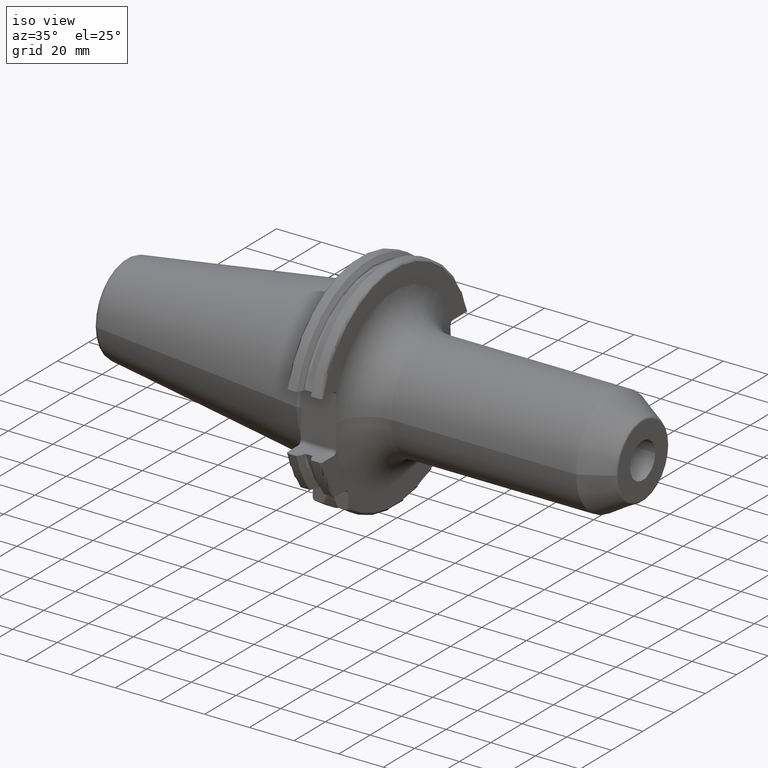
[diagram: clean part render]
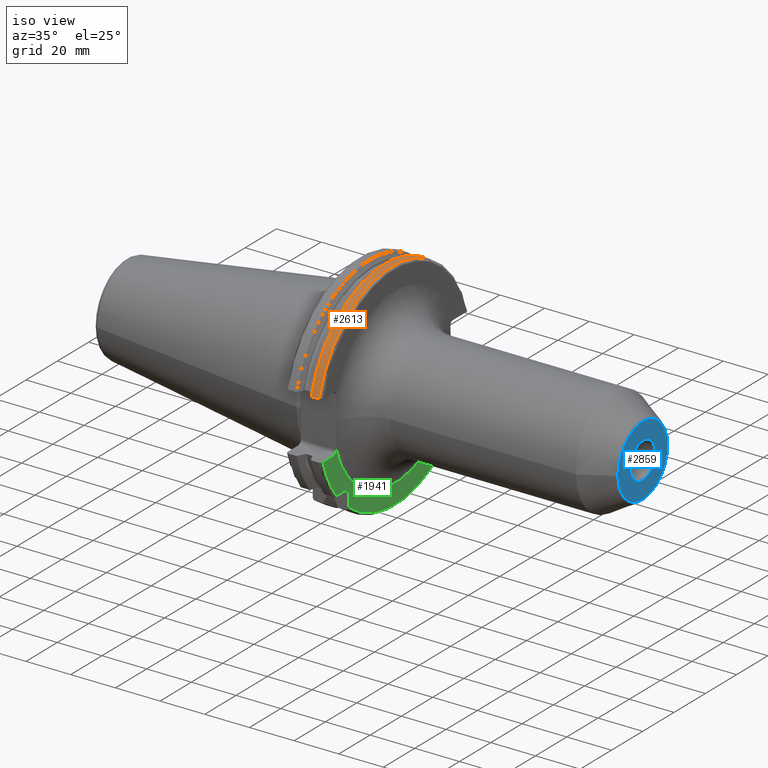
[diagram: same view with three faces highlighted in distinct colors, each labeled with its STEP entity id]
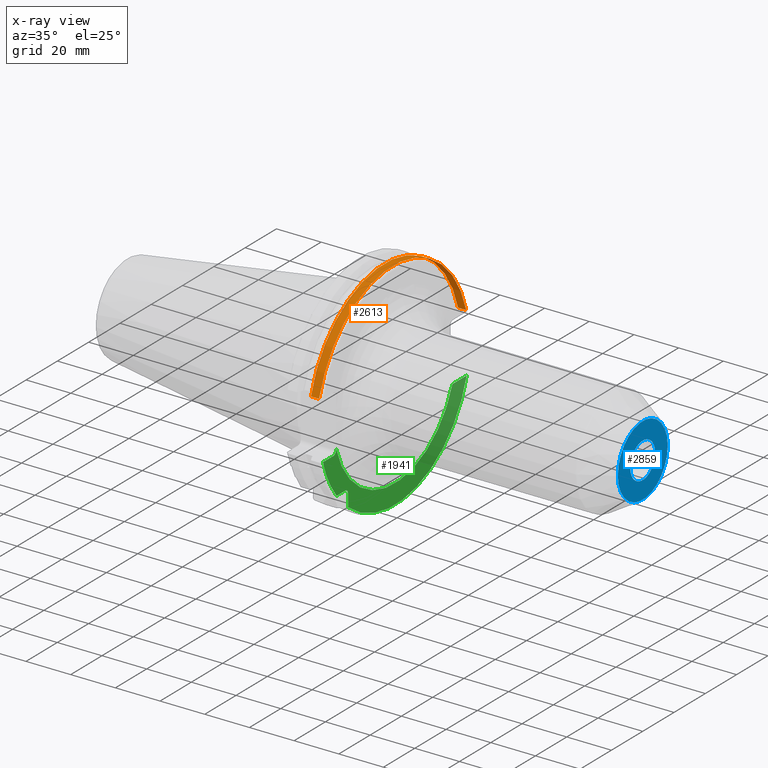
[diagram: x-ray of the same camera — body ghosted, the three highlighted faces saturated]
A machine part, iso view with three faces highlighted in distinct colors.
The next image is the same camera in x-ray (body ghosted, the three faces saturated) — at least one of them is partly hidden behind the body in this view.
Their STEP definitions:

[orange] entity #2613 — the highlighted cylindrical surface (partial cylindrical patch) has radius 48.7375 mm, axis along (1, 0, 0).
#735=CARTESIAN_POINT('',(1.441537838583E1,4.699929686974E1,1.29E1));
#747=CARTESIAN_POINT('',(1.441537838583E1,-4.699929686974E1,1.29E1));
#767=DIRECTION('',(1.E0,0.E0,0.E0));
#768=VECTOR('',#767,3.634621614173E0);
#769=CARTESIAN_POINT('',(1.441537838583E1,4.699929686974E1,1.29E1));
#770=LINE('',#769,#768);
#771=CARTESIAN_POINT('',(1.805E1,0.E0,0.E0));
#772=DIRECTION('',(1.E0,0.E0,0.E0));
#773=DIRECTION('',(0.E0,9.643354064066E-1,2.646832521159E-1));
#774=AXIS2_PLACEMENT_3D('',#771,#772,#773);
#776=DIRECTION('',(1.E0,0.E0,0.E0));
#777=VECTOR('',#776,3.634621614173E0);
#778=CARTESIAN_POINT('',(1.441537838583E1,-4.699929686974E1,1.29E1));
#779=LINE('',#778,#777);
#780=CARTESIAN_POINT('',(1.441537838583E1,0.E0,0.E0));
#781=DIRECTION('',(1.E0,0.E0,0.E0));
#782=DIRECTION('',(0.E0,9.643354064066E-1,2.646832521159E-1));
#783=AXIS2_PLACEMENT_3D('',#780,#781,#782);
#1558=VERTEX_POINT('',#735);
#1559=VERTEX_POINT('',#747);
#1574=CARTESIAN_POINT('',(1.805E1,4.699929686974E1,1.29E1));
#1575=VERTEX_POINT('',#1574);
#1578=CARTESIAN_POINT('',(1.805E1,-4.699929686974E1,1.29E1));
#1579=VERTEX_POINT('',#1578);
#2602=CARTESIAN_POINT('',(-1.076325E2,0.E0,0.E0));
#2603=DIRECTION('',(1.E0,0.E0,0.E0));
#2604=DIRECTION('',(0.E0,-1.E0,0.E0));
#2605=AXIS2_PLACEMENT_3D('',#2602,#2603,#2604);
#2606=CYLINDRICAL_SURFACE('',#2605,4.87375E1);
#2607=ORIENTED_EDGE('',*,*,#2043,.T.);
#2608=ORIENTED_EDGE('',*,*,#2077,.T.);
#2609=ORIENTED_EDGE('',*,*,#2109,.F.);
#2610=ORIENTED_EDGE('',*,*,#2581,.F.);
#2611=EDGE_LOOP('',(#2607,#2608,#2609,#2610));
#2612=FACE_OUTER_BOUND('',#2611,.F.);
#2613=ADVANCED_FACE('',(#2612),#2606,.T.);
#775=CIRCLE('',#774,4.87375E1);
#784=CIRCLE('',#783,4.87375E1);
#2043=EDGE_CURVE('',#1558,#1575,#770,.T.);
#2077=EDGE_CURVE('',#1575,#1579,#775,.T.);
#2109=EDGE_CURVE('',#1559,#1579,#779,.T.);
#2581=EDGE_CURVE('',#1558,#1559,#784,.T.);

[blue] entity #2859 — the highlighted planar face has unit normal (1, 0, 0).
#1130=CARTESIAN_POINT('',(1.3E2,0.E0,0.E0));
#1131=DIRECTION('',(1.E0,0.E0,0.E0));
#1132=DIRECTION('',(0.E0,1.E0,0.E0));
#1133=AXIS2_PLACEMENT_3D('',#1130,#1131,#1132);
#1135=CARTESIAN_POINT('',(1.3E2,0.E0,0.E0));
#1136=DIRECTION('',(1.E0,0.E0,0.E0));
#1137=DIRECTION('',(0.E0,-1.E0,0.E0));
#1138=AXIS2_PLACEMENT_3D('',#1135,#1136,#1137);
#1140=CARTESIAN_POINT('',(1.3E2,0.E0,0.E0));
#1141=DIRECTION('',(-1.E0,0.E0,0.E0));
#1142=DIRECTION('',(0.E0,1.E0,0.E0));
#1143=AXIS2_PLACEMENT_3D('',#1140,#1141,#1142);
#1145=CARTESIAN_POINT('',(1.3E2,0.E0,0.E0));
#1146=DIRECTION('',(-1.E0,0.E0,0.E0));
#1147=DIRECTION('',(0.E0,-1.E0,0.E0));
#1148=AXIS2_PLACEMENT_3D('',#1145,#1146,#1147);
#1663=CARTESIAN_POINT('',(1.3E2,-8.E0,0.E0));
#1664=VERTEX_POINT('',#1663);
#1673=CARTESIAN_POINT('',(1.3E2,8.E0,0.E0));
#1674=VERTEX_POINT('',#1673);
#1699=CARTESIAN_POINT('',(1.3E2,1.591709623135E1,4.271347892428E-14));
#1700=CARTESIAN_POINT('',(1.3E2,-1.591709623135E1,-3.759415033094E-14));
#1701=VERTEX_POINT('',#1699);
#1702=VERTEX_POINT('',#1700);
#2844=CARTESIAN_POINT('',(1.3E2,0.E0,0.E0));
#2845=DIRECTION('',(1.E0,0.E0,0.E0));
#2846=DIRECTION('',(0.E0,-1.E0,0.E0));
#2847=AXIS2_PLACEMENT_3D('',#2844,#2845,#2846);
#2848=PLANE('',#2847);
#2850=ORIENTED_EDGE('',*,*,#2849,.T.);
#2852=ORIENTED_EDGE('',*,*,#2851,.T.);
#2853=EDGE_LOOP('',(#2850,#2852));
#2854=FACE_OUTER_BOUND('',#2853,.F.);
#2855=ORIENTED_EDGE('',*,*,#2828,.T.);
#2856=ORIENTED_EDGE('',*,*,#2807,.T.);
#2857=EDGE_LOOP('',(#2855,#2856));
#2858=FACE_BOUND('',#2857,.F.);
#2859=ADVANCED_FACE('',(#2854,#2858),#2848,.T.);
#1134=CIRCLE('',#1133,8.E0);
#1139=CIRCLE('',#1138,8.E0);
#1144=CIRCLE('',#1143,1.591709623135E1);
#1149=CIRCLE('',#1148,1.591709623135E1);
#2807=EDGE_CURVE('',#1664,#1674,#1139,.T.);
#2828=EDGE_CURVE('',#1674,#1664,#1134,.T.);
#2849=EDGE_CURVE('',#1701,#1702,#1144,.T.);
#2851=EDGE_CURVE('',#1702,#1701,#1149,.T.);

[green] entity #1941 — the highlighted planar face has unit normal (1, 0, 0).
#126=CARTESIAN_POINT('',(1.905E1,3.705E1,-1.115E1));
#127=DIRECTION('',(-1.E0,0.E0,0.E0));
#128=DIRECTION('',(0.E0,0.E0,-1.E0));
#129=AXIS2_PLACEMENT_3D('',#126,#127,#128);
#136=CARTESIAN_POINT('',(1.905E1,0.E0,0.E0));
#137=DIRECTION('',(1.E0,0.E0,0.E0));
#138=DIRECTION('',(0.E0,-9.615379445209E-1,-2.746721340919E-1));
#139=AXIS2_PLACEMENT_3D('',#136,#137,#138);
#141=DIRECTION('',(0.E0,-1.E0,0.E0));
#142=VECTOR('',#141,8.911493733886E0);
#143=CARTESIAN_POINT('',(1.905E1,4.596149373389E1,-1.29E1));
#144=LINE('',#143,#142);
#145=DIRECTION('',(0.E0,0.E0,1.E0));
#146=VECTOR('',#145,5.653810627237E0);
#147=CARTESIAN_POINT('',(1.905E1,-2.985E1,-3.725381062724E1));
#148=LINE('',#147,#146);
#149=DIRECTION('',(0.E0,-1.E0,0.E0));
#150=VECTOR('',#149,5.653810627237E0);
#151=CARTESIAN_POINT('',(1.905E1,-3.16E1,-2.985E1));
#152=LINE('',#151,#150);
#153=DIRECTION('',(0.E0,1.E0,0.E0));
#154=VECTOR('',#153,6.711493733886E0);
#155=CARTESIAN_POINT('',(1.905E1,-4.596149373389E1,-1.29E1));
#156=LINE('',#155,#154);
#157=DIRECTION('',(0.E0,3.453638620250E-5,9.999999994036E-1));
#158=VECTOR('',#157,4.377789808166E-1);
#159=CARTESIAN_POINT('',(1.905E1,-3.75E1,-1.115E1));
#160=LINE('',#159,#158);
#358=CARTESIAN_POINT('',(1.905E1,-3.925E1,-1.115E1));
#359=DIRECTION('',(-1.E0,0.E0,0.E0));
#360=DIRECTION('',(0.E0,1.E0,0.E0));
#361=AXIS2_PLACEMENT_3D('',#358,#359,#360);
#381=CARTESIAN_POINT('',(1.905E1,4.596149373389E1,-1.29E1));
#393=CARTESIAN_POINT('',(1.905E1,0.E0,0.E0));
#394=DIRECTION('',(-1.E0,0.E0,0.E0));
#395=DIRECTION('',(0.E0,9.627964123359E-1,-2.702278083268E-1));
#396=AXIS2_PLACEMENT_3D('',#393,#394,#395);
#398=CARTESIAN_POINT('',(1.905E1,-4.596149373389E1,-1.29E1));
#409=CARTESIAN_POINT('',(1.905E1,0.E0,0.E0));
#410=DIRECTION('',(-1.E0,0.E0,0.E0));
#411=DIRECTION('',(0.E0,-7.803888060170E-1,-6.252945797329E-1));
#412=AXIS2_PLACEMENT_3D('',#409,#410,#411);
#423=CARTESIAN_POINT('',(1.905E1,-3.725381062724E1,-2.985E1));
#486=CARTESIAN_POINT('',(1.905E1,-3.16E1,-3.16E1));
#487=DIRECTION('',(-1.E0,0.E0,0.E0));
#488=DIRECTION('',(0.E0,0.E0,1.E0));
#489=AXIS2_PLACEMENT_3D('',#486,#487,#488);
#1595=VERTEX_POINT('',#381);
#1596=VERTEX_POINT('',#398);
#1615=CARTESIAN_POINT('',(1.905E1,-2.985E1,-3.725381062724E1));
#1616=VERTEX_POINT('',#1615);
#1623=CARTESIAN_POINT('',(1.905E1,-3.75E1,-1.115E1));
#1625=VERTEX_POINT('',#1623);
#1627=CARTESIAN_POINT('',(1.905E1,-3.925E1,-1.29E1));
#1629=VERTEX_POINT('',#1627);
#1643=CARTESIAN_POINT('',(1.905E1,3.705E1,-1.29E1));
#1645=VERTEX_POINT('',#1643);
#1651=CARTESIAN_POINT('',(1.905E1,-3.16E1,-2.985E1));
#1652=CARTESIAN_POINT('',(1.905E1,-2.985E1,-3.16E1));
#1653=VERTEX_POINT('',#1651);
#1654=VERTEX_POINT('',#1652);
#1675=CARTESIAN_POINT('',(1.905E1,-3.749997983631E1,-1.071221322958E1));
#1676=CARTESIAN_POINT('',(1.905E1,3.681051948064E1,-1.288354204266E1));
#1677=VERTEX_POINT('',#1675);
#1678=VERTEX_POINT('',#1676);
#1724=VERTEX_POINT('',#423);
#1913=CARTESIAN_POINT('',(1.905E1,0.E0,0.E0));
#1914=DIRECTION('',(1.E0,0.E0,0.E0));
#1915=DIRECTION('',(0.E0,-1.E0,0.E0));
#1916=AXIS2_PLACEMENT_3D('',#1913,#1914,#1915);
#1917=PLANE('',#1916);
#1919=ORIENTED_EDGE('',*,*,#1918,.T.);
#1920=ORIENTED_EDGE('',*,*,#1901,.F.);
#1922=ORIENTED_EDGE('',*,*,#1921,.F.);
#1924=ORIENTED_EDGE('',*,*,#1923,.T.);
#1926=ORIENTED_EDGE('',*,*,#1925,.T.);
#1928=ORIENTED_EDGE('',*,*,#1927,.F.);
#1930=ORIENTED_EDGE('',*,*,#1929,.T.);
#1932=ORIENTED_EDGE('',*,*,#1931,.T.);
#1934=ORIENTED_EDGE('',*,*,#1933,.T.);
#1936=ORIENTED_EDGE('',*,*,#1935,.F.);
#1938=ORIENTED_EDGE('',*,*,#1937,.T.);
#1939=EDGE_LOOP('',(#1919,#1920,#1922,#1924,#1926,#1928,#1930,#1932,#1934,#1936,
#1938));
#1940=FACE_OUTER_BOUND('',#1939,.F.);
#1941=ADVANCED_FACE('',(#1940),#1917,.T.);
#130=CIRCLE('',#129,1.75E0);
#140=CIRCLE('',#139,3.9E1);
#362=CIRCLE('',#361,1.75E0);
#397=CIRCLE('',#396,4.77375E1);
#413=CIRCLE('',#412,4.77375E1);
#490=CIRCLE('',#489,1.75E0);
#1901=EDGE_CURVE('',#1645,#1678,#130,.T.);
#1918=EDGE_CURVE('',#1677,#1678,#140,.T.);
#1921=EDGE_CURVE('',#1595,#1645,#144,.T.);
#1923=EDGE_CURVE('',#1595,#1616,#397,.T.);
#1925=EDGE_CURVE('',#1616,#1654,#148,.T.);
#1927=EDGE_CURVE('',#1653,#1654,#490,.T.);
#1929=EDGE_CURVE('',#1653,#1724,#152,.T.);
#1931=EDGE_CURVE('',#1724,#1596,#413,.T.);
#1933=EDGE_CURVE('',#1596,#1629,#156,.T.);
#1935=EDGE_CURVE('',#1625,#1629,#362,.T.);
#1937=EDGE_CURVE('',#1625,#1677,#160,.T.);